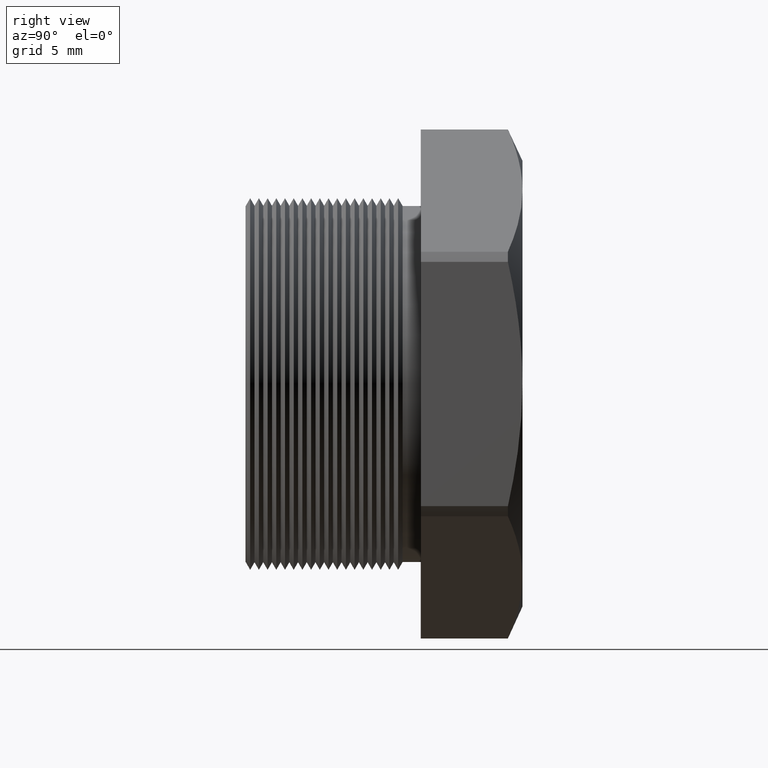
[diagram: clean part render]
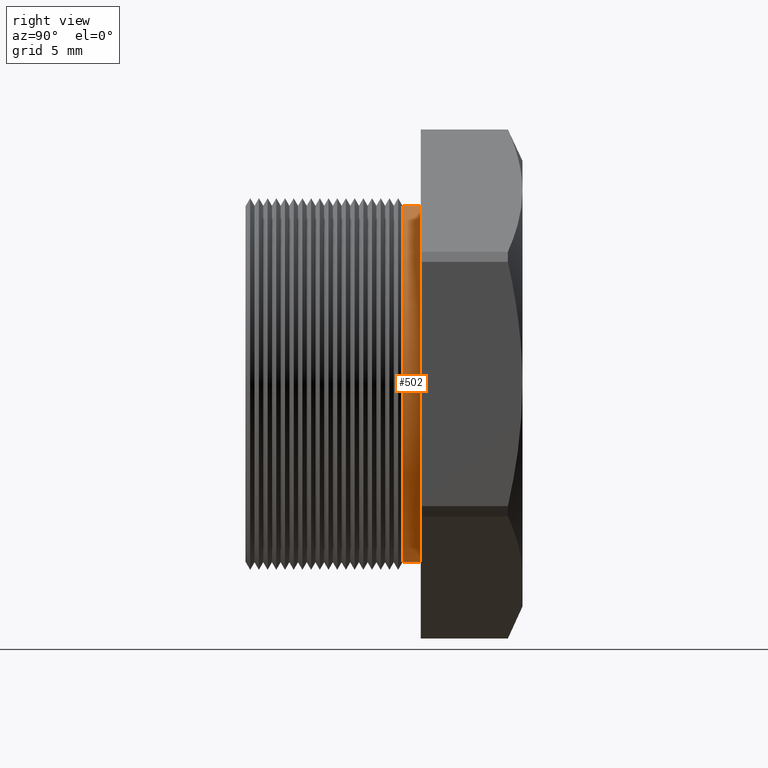
[diagram: same view with one face highlighted and labeled with its STEP entity id]
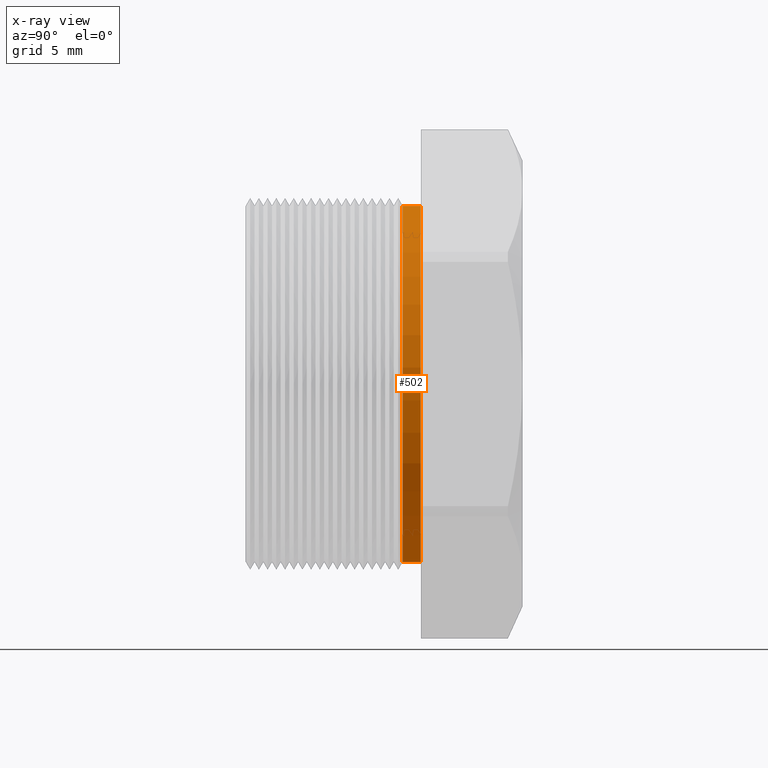
[diagram: x-ray of the same camera — body ghosted, the highlighted face saturated]
A machine part, right view. The second image highlights one B-rep face of the part: STEP entity #502.
The next image is the same camera in x-ray: the body ghosted, the highlighted face saturated — about 0% of this face is hidden behind the body in this view.
In plain terms, the highlighted cylindrical surface (partial cylindrical patch) has radius 8.001 mm, axis along (-0, -1, -0).
Its self-contained STEP definition (entity closure, byte-faithful):
#440 = VERTEX_POINT ( 'NONE', #3853 ) ;
#448 = EDGE_CURVE ( 'NONE', #440, #453, #3841, .T. ) ;
#453 = VERTEX_POINT ( 'NONE', #3826 ) ;
#498 = ORIENTED_EDGE ( 'NONE', *, *, #503, .T. ) ;
#502 = ADVANCED_FACE ( 'NONE', ( #3919 ), #3978, .T. ) ;
#503 = EDGE_CURVE ( 'NONE', #535, #533, #3918, .T. ) ;
#507 = EDGE_LOOP ( 'NONE', ( #498, #532, #524, #516 ) ) ;
#516 = ORIENTED_EDGE ( 'NONE', *, *, #527, .F. ) ;
#524 = ORIENTED_EDGE ( 'NONE', *, *, #448, .F. ) ;
#527 = EDGE_CURVE ( 'NONE', #535, #440, #3996, .T. ) ;
#532 = ORIENTED_EDGE ( 'NONE', *, *, #537, .T. ) ;
#533 = VERTEX_POINT ( 'NONE', #4036 ) ;
#535 = VERTEX_POINT ( 'NONE', #4035 ) ;
#537 = EDGE_CURVE ( 'NONE', #533, #453, #4034, .T. ) ;
#3826 = CARTESIAN_POINT ( 'NONE',  ( 3.857637417314162700E-017, 0.1955072448100089200, 0.3150000000000000000 ) ) ;
#3837 = DIRECTION ( 'NONE',  ( 0.0000000000000000000, 0.0000000000000000000, -1.000000000000000000 ) ) ;
#3838 = DIRECTION ( 'NONE',  ( 0.0000000000000000000, -1.000000000000000000, 0.0000000000000000000 ) ) ;
#3839 = CARTESIAN_POINT ( 'NONE',  ( 0.0000000000000000000, 0.1955072448100089200, 0.0000000000000000000 ) ) ;
#3840 = AXIS2_PLACEMENT_3D ( 'NONE', #3839, #3838, #3837 ) ;
#3841 = CIRCLE ( 'NONE', #3840, 0.3150000000000000000 ) ;
#3853 = CARTESIAN_POINT ( 'NONE',  ( 0.0000000000000000000, 0.1955072448100089200, -0.3150000000000000000 ) ) ;
#3918 = CIRCLE ( 'NONE', #3973, 0.3150000000000000000 ) ;
#3919 = FACE_OUTER_BOUND ( 'NONE', #507, .T. ) ;
#3970 = DIRECTION ( 'NONE',  ( 0.0000000000000000000, 0.0000000000000000000, -1.000000000000000000 ) ) ;
#3971 = DIRECTION ( 'NONE',  ( -0.0000000000000000000, -1.000000000000000000, -0.0000000000000000000 ) ) ;
#3972 = CARTESIAN_POINT ( 'NONE',  ( 0.0000000000000000000, 0.2275548905829479800, 0.0000000000000000000 ) ) ;
#3973 = AXIS2_PLACEMENT_3D ( 'NONE', #3972, #3971, #3970 ) ;
#3974 = DIRECTION ( 'NONE',  ( 0.0000000000000000000, 0.0000000000000000000, -1.000000000000000000 ) ) ;
#3975 = DIRECTION ( 'NONE',  ( -0.0000000000000000000, -1.000000000000000000, -0.0000000000000000000 ) ) ;
#3976 = CARTESIAN_POINT ( 'NONE',  ( 0.0000000000000000000, 0.0000000000000000000, 0.0000000000000000000 ) ) ;
#3977 = AXIS2_PLACEMENT_3D ( 'NONE', #3976, #3975, #3974 ) ;
#3978 = CYLINDRICAL_SURFACE ( 'NONE', #3977, 0.3150000000000000000 ) ;
#3993 = DIRECTION ( 'NONE',  ( -0.0000000000000000000, -1.000000000000000000, -0.0000000000000000000 ) ) ;
#3994 = VECTOR ( 'NONE', #3993, 39.37007874015748100 ) ;
#3995 = CARTESIAN_POINT ( 'NONE',  ( 0.0000000000000000000, 0.0000000000000000000, -0.3150000000000000000 ) ) ;
#3996 = LINE ( 'NONE', #3995, #3994 ) ;
#4031 = DIRECTION ( 'NONE',  ( -0.0000000000000000000, -1.000000000000000000, -0.0000000000000000000 ) ) ;
#4032 = VECTOR ( 'NONE', #4031, 39.37007874015748100 ) ;
#4033 = CARTESIAN_POINT ( 'NONE',  ( 3.857637417314162700E-017, 0.0000000000000000000, 0.3150000000000000000 ) ) ;
#4034 = LINE ( 'NONE', #4033, #4032 ) ;
#4035 = CARTESIAN_POINT ( 'NONE',  ( 0.0000000000000000000, 0.2275548905829479800, -0.3150000000000000000 ) ) ;
#4036 = CARTESIAN_POINT ( 'NONE',  ( 3.857637417314162700E-017, 0.2275548905829479800, 0.3150000000000000000 ) ) ;